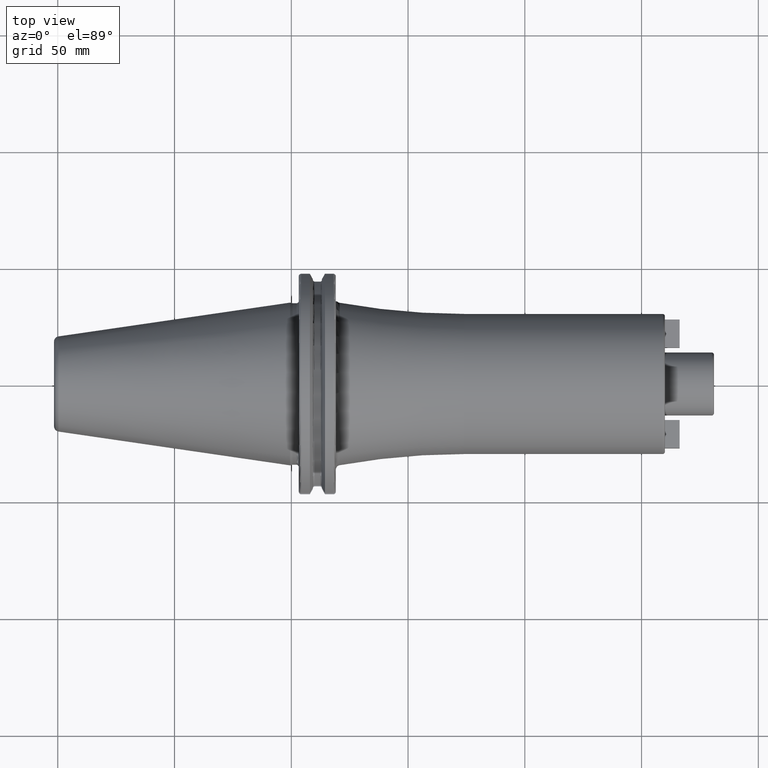
[diagram: clean part render]
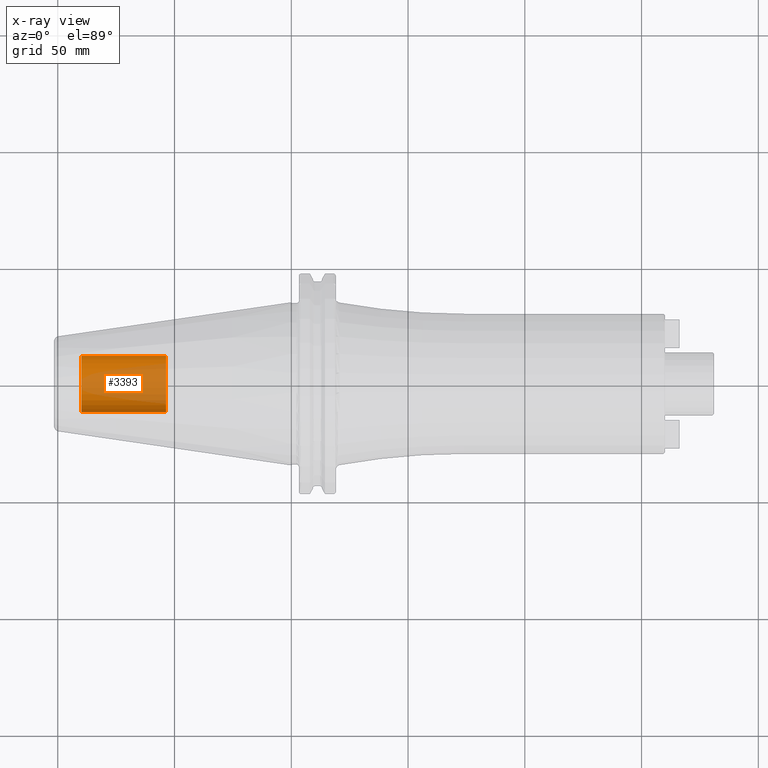
[diagram: x-ray — body ghosted, one internal face saturated and labeled with its STEP entity id]
A machine part, top view, then the same camera in x-ray: the body is ghosted and one INTERNAL B-rep face — a face not visible from any outside direction — is saturated and labeled: STEP entity #3393.
In plain terms, the highlighted cylindrical surface (edge-blend (fillet) strip) has radius 12.0032 mm, axis along (1, 0, 0).
Its self-contained STEP definition (entity closure, byte-faithful):
#3328=CARTESIAN_POINT('',(-8.985E1,0.E0,0.E0));
#3329=DIRECTION('',(-1.E0,0.E0,0.E0));
#3330=DIRECTION('',(0.E0,1.E0,0.E0));
#3331=AXIS2_PLACEMENT_3D('',#3328,#3329,#3330);
#3333=DIRECTION('',(1.E0,0.E0,0.E0));
#3334=VECTOR('',#3333,3.625E1);
#3335=CARTESIAN_POINT('',(-8.985E1,-1.200325E1,0.E0));
#3336=LINE('',#3335,#3334);
#3342=DIRECTION('',(1.E0,0.E0,0.E0));
#3343=VECTOR('',#3342,3.625E1);
#3344=CARTESIAN_POINT('',(-8.985E1,1.200325E1,0.E0));
#3345=LINE('',#3344,#3343);
#3351=CARTESIAN_POINT('',(-5.36E1,0.E0,0.E0));
#3352=DIRECTION('',(1.E0,0.E0,0.E0));
#3353=DIRECTION('',(0.E0,-1.E0,0.E0));
#3354=AXIS2_PLACEMENT_3D('',#3351,#3352,#3353);
#3366=CARTESIAN_POINT('',(-8.985E1,1.200325E1,0.E0));
#3367=CARTESIAN_POINT('',(-8.985E1,-1.200325E1,0.E0));
#3368=VERTEX_POINT('',#3366);
#3369=VERTEX_POINT('',#3367);
#3370=CARTESIAN_POINT('',(-5.36E1,1.200325E1,0.E0));
#3371=CARTESIAN_POINT('',(-5.36E1,-1.200325E1,0.E0));
#3372=VERTEX_POINT('',#3370);
#3373=VERTEX_POINT('',#3371);
#3378=CARTESIAN_POINT('',(-8.985E1,0.E0,0.E0));
#3379=DIRECTION('',(1.E0,0.E0,0.E0));
#3380=DIRECTION('',(0.E0,1.E0,0.E0));
#3381=AXIS2_PLACEMENT_3D('',#3378,#3379,#3380);
#3382=CYLINDRICAL_SURFACE('',#3381,1.200325E1);
#3384=ORIENTED_EDGE('',*,*,#3383,.T.);
#3386=ORIENTED_EDGE('',*,*,#3385,.T.);
#3388=ORIENTED_EDGE('',*,*,#3387,.T.);
#3390=ORIENTED_EDGE('',*,*,#3389,.F.);
#3391=EDGE_LOOP('',(#3384,#3386,#3388,#3390));
#3392=FACE_OUTER_BOUND('',#3391,.F.);
#3393=ADVANCED_FACE('',(#3392),#3382,.T.);
#3332=CIRCLE('',#3331,1.200325E1);
#3355=CIRCLE('',#3354,1.200325E1);
#3383=EDGE_CURVE('',#3368,#3369,#3332,.T.);
#3385=EDGE_CURVE('',#3369,#3373,#3336,.T.);
#3387=EDGE_CURVE('',#3373,#3372,#3355,.T.);
#3389=EDGE_CURVE('',#3368,#3372,#3345,.T.);